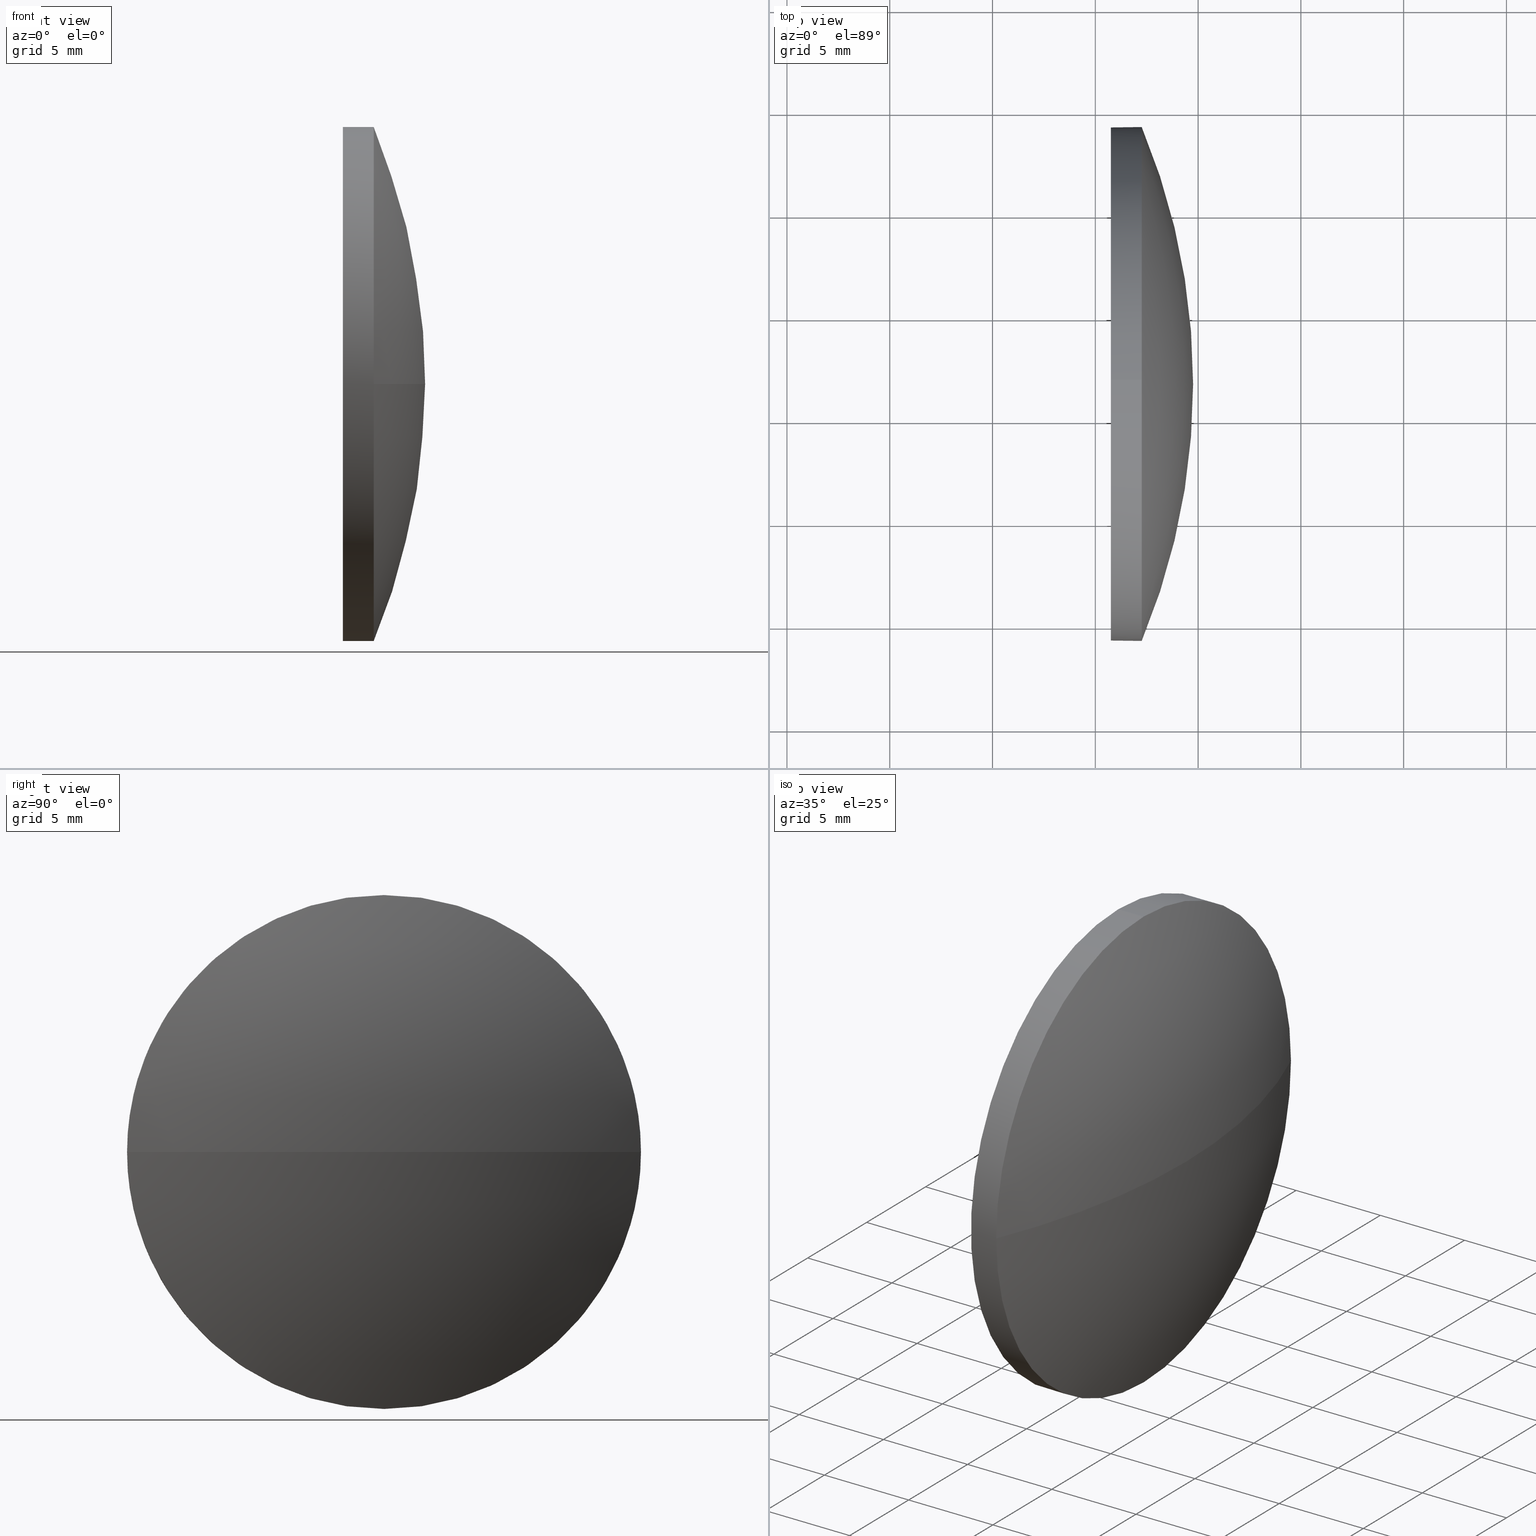
[diagram: canonical four-view strip — front | top / right | iso, engineering-drawing reading convention]
A machine part, canonical four-view strip (front | top / right | iso — engineering-drawing reading convention). The complete STEP part file that produces these views, byte-faithful:
ISO-10303-21;
HEADER;
FILE_DESCRIPTION (( 'STEP AP214' ),
    '1' );
FILE_NAME ('100127.STEP',
    '2019-05-14T09:08:15',
    ( '' ),
    ( '' ),
    'SwSTEP 2.0',
    'SolidWorks 2016',
    '' );
FILE_SCHEMA (( 'AUTOMOTIVE_DESIGN' ));
ENDSEC;

DATA;
#1 = EDGE_CURVE ( 'NONE', #178, #59, #99, .T. ) ;
#2 = CARTESIAN_POINT ( 'NONE',  ( 594.7578549459785800, 196.7022830089344200, 0.0000000000000000000 ) ) ;
#3 = FACE_OUTER_BOUND ( 'NONE', #107, .T. ) ;
#4 =( GEOMETRIC_REPRESENTATION_CONTEXT ( 3 ) GLOBAL_UNCERTAINTY_ASSIGNED_CONTEXT ( ( #170 ) ) GLOBAL_UNIT_ASSIGNED_CONTEXT ( ( #139, #51, #8 ) ) REPRESENTATION_CONTEXT ( 'NONE', 'WORKASPACE' ) );
#5 = LINE ( 'NONE', #156, #85 ) ;
#6 = AXIS2_PLACEMENT_3D ( 'NONE', #78, #10, #179 ) ;
#7 = CARTESIAN_POINT ( 'NONE',  ( 562.2578549459785800, 196.7022830089344200, 0.0000000000000000000 ) ) ;
#8 =( NAMED_UNIT ( * ) SI_UNIT ( $, .STERADIAN. ) SOLID_ANGLE_UNIT ( ) );
#9 = AXIS2_PLACEMENT_3D ( 'NONE', #64, #38, #117 ) ;
#10 = DIRECTION ( 'NONE',  ( -1.000000000000000000, -0.0000000000000000000, -0.0000000000000000000 ) ) ;
#11 = DIRECTION ( 'NONE',  ( 0.0000000000000000000, -1.000000000000000000, -1.224646799147353200E-016 ) ) ;
#12 = DIRECTION ( 'NONE',  ( 1.000000000000000000, 0.0000000000000000000, 0.0000000000000000000 ) ) ;
#13 = CARTESIAN_POINT ( 'NONE',  ( 592.2578549459785800, 196.7022830089343900, 0.0000000000000000000 ) ) ;
#14 = SURFACE_STYLE_FILL_AREA ( #34 ) ;
#15 =( NAMED_UNIT ( * ) PLANE_ANGLE_UNIT ( ) SI_UNIT ( $, .RADIAN. ) );
#16 = DIRECTION ( 'NONE',  ( 0.0000000000000000000, 0.0000000000000000000, 1.000000000000000000 ) ) ;
#17 = CIRCLE ( 'NONE', #49, 12.50000000000001100 ) ;
#18 = VERTEX_POINT ( 'NONE', #180 ) ;
#19 = AXIS2_PLACEMENT_3D ( 'NONE', #7, #93, #53 ) ;
#20 = CLOSED_SHELL ( 'NONE', ( #103, #88, #134, #172, #133 ) ) ;
#21 = CIRCLE ( 'NONE', #39, 12.50000000000001100 ) ;
#22 = VERTEX_POINT ( 'NONE', #105 ) ;
#23 = CARTESIAN_POINT ( 'NONE',  ( 590.7578549459785800, 196.7022830089343900, -12.50000000000001100 ) ) ;
#24 = DIRECTION ( 'NONE',  ( -1.000000000000000000, -0.0000000000000000000, -0.0000000000000000000 ) ) ;
#25 = PRODUCT ( '100127', '100127', '', ( #40 ) ) ;
#26 = DIRECTION ( 'NONE',  ( 0.0000000000000000000, 0.0000000000000000000, 1.000000000000000000 ) ) ;
#27 = STYLED_ITEM ( 'NONE', ( #46 ), #62 ) ;
#28 = CARTESIAN_POINT ( 'NONE',  ( 0.0000000000000000000, 0.0000000000000000000, 0.0000000000000000000 ) ) ;
#29 = ORIENTED_EDGE ( 'NONE', *, *, #124, .F. ) ;
#30 = ORIENTED_EDGE ( 'NONE', *, *, #161, .T. ) ;
#31 = EDGE_LOOP ( 'NONE', ( #114, #138, #160, #29 ) ) ;
#32 = SURFACE_STYLE_FILL_AREA ( #186 ) ;
#33 = EDGE_LOOP ( 'NONE', ( #140, #126 ) ) ;
#34 = FILL_AREA_STYLE ('',( #121 ) ) ;
#35 = CYLINDRICAL_SURFACE ( 'NONE', #174, 12.50000000000001100 ) ;
#36 = SURFACE_STYLE_USAGE ( .BOTH. , #137 ) ;
#37 = PRESENTATION_LAYER_ASSIGNMENT (  '', '', ( #27 ) ) ;
#38 = DIRECTION ( 'NONE',  ( -1.000000000000000000, -0.0000000000000000000, -0.0000000000000000000 ) ) ;
#39 = AXIS2_PLACEMENT_3D ( 'NONE', #177, #92, #120 ) ;
#40 = PRODUCT_CONTEXT ( 'NONE', #57, 'mechanical' ) ;
#41 = EDGE_CURVE ( 'NONE', #144, #59, #83, .T. ) ;
#42 = DIRECTION ( 'NONE',  ( 0.0000000000000000000, 0.0000000000000000000, 1.000000000000000000 ) ) ;
#43 = CARTESIAN_POINT ( 'NONE',  ( 590.7578549459785800, 196.7022830089343900, 0.0000000000000000000 ) ) ;
#44 =( NAMED_UNIT ( * ) SI_UNIT ( $, .STERADIAN. ) SOLID_ANGLE_UNIT ( ) );
#45 = AXIS2_PLACEMENT_3D ( 'NONE', #141, #12, #84 ) ;
#46 = PRESENTATION_STYLE_ASSIGNMENT (( #36 ) ) ;
#47 = PRODUCT_DEFINITION_CONTEXT ( 'detailed design', #112, 'design' ) ;
#48 = CIRCLE ( 'NONE', #108, 12.50000000000001100 ) ;
#49 = AXIS2_PLACEMENT_3D ( 'NONE', #13, #24, #154 ) ;
#50 = COLOUR_RGB ( '',1.000000000000000000, 1.000000000000000000, 1.000000000000000000 ) ;
#51 =( NAMED_UNIT ( * ) PLANE_ANGLE_UNIT ( ) SI_UNIT ( $, .RADIAN. ) );
#52 = SPHERICAL_SURFACE ( 'NONE', #89, 32.49999999999999300 ) ;
#53 = DIRECTION ( 'NONE',  ( -1.000000000000000000, 0.0000000000000000000, 0.0000000000000000000 ) ) ;
#54 = DIRECTION ( 'NONE',  ( -1.000000000000000000, -0.0000000000000000000, -0.0000000000000000000 ) ) ;
#55 = ORIENTED_EDGE ( 'NONE', *, *, #146, .F. ) ;
#56 = CARTESIAN_POINT ( 'NONE',  ( 592.2578549459785800, 196.7022830089343900, 0.0000000000000000000 ) ) ;
#57 = APPLICATION_CONTEXT ( 'automotive_design' ) ;
#58 = VECTOR ( 'NONE', #102, 1000.000000000000000 ) ;
#59 = VERTEX_POINT ( 'NONE', #77 ) ;
#60 = ORIENTED_EDGE ( 'NONE', *, *, #145, .T. ) ;
#61 = DIRECTION ( 'NONE',  ( 0.0000000000000000000, 0.0000000000000000000, 1.000000000000000000 ) ) ;
#62 = MANIFOLD_SOLID_BREP ( '��ת1', #20 ) ;
#63 = ORIENTED_EDGE ( 'NONE', *, *, #1, .T. ) ;
#64 = CARTESIAN_POINT ( 'NONE',  ( 592.2578549459785800, 196.7022830089343900, 0.0000000000000000000 ) ) ;
#65 = PRESENTATION_LAYER_ASSIGNMENT (  '', '', ( #119 ) ) ;
#66 = UNCERTAINTY_MEASURE_WITH_UNIT (LENGTH_MEASURE( 1.000000000000000100E-005 ), #100, 'distance_accuracy_value', 'NONE');
#67 = ORIENTED_EDGE ( 'NONE', *, *, #135, .T. ) ;
#68 =( NAMED_UNIT ( * ) PLANE_ANGLE_UNIT ( ) SI_UNIT ( $, .RADIAN. ) );
#69 = EDGE_LOOP ( 'NONE', ( #151, #30, #176, #150, #60 ) ) ;
#70 = DIRECTION ( 'NONE',  ( -1.000000000000000000, -0.0000000000000000000, -0.0000000000000000000 ) ) ;
#71 = MECHANICAL_DESIGN_GEOMETRIC_PRESENTATION_REPRESENTATION (  '', ( #27 ), #4 ) ;
#72 = AXIS2_PLACEMENT_3D ( 'NONE', #152, #26, #157 ) ;
#73 = FACE_OUTER_BOUND ( 'NONE', #173, .T. ) ;
#74 = AXIS2_PLACEMENT_3D ( 'NONE', #125, #185, #16 ) ;
#75 = COLOUR_RGB ( '',1.000000000000000000, 1.000000000000000000, 1.000000000000000000 ) ;
#76 = VERTEX_POINT ( 'NONE', #23 ) ;
#77 = CARTESIAN_POINT ( 'NONE',  ( 592.2578549459785800, 184.2022830089344400, 0.0000000000000000000 ) ) ;
#78 = CARTESIAN_POINT ( 'NONE',  ( 588.3922390432176100, 196.7022830089343900, 0.0000000000000000000 ) ) ;
#79 = DIRECTION ( 'NONE',  ( 0.0000000000000000000, -1.224646799147353200E-016, 1.000000000000000000 ) ) ;
#80 = DIRECTION ( 'NONE',  ( -1.000000000000000000, -0.0000000000000000000, -0.0000000000000000000 ) ) ;
#81 = PLANE ( 'NONE',  #45 ) ;
#82 = APPLICATION_PROTOCOL_DEFINITION ( 'draft international standard', 'automotive_design', 1998, #112 ) ;
#83 = CIRCLE ( 'NONE', #19, 32.49999999999997200 ) ;
#84 = DIRECTION ( 'NONE',  ( 0.0000000000000000000, 0.0000000000000000000, -1.000000000000000000 ) ) ;
#85 = VECTOR ( 'NONE', #80, 1000.000000000000000 ) ;
#86 = UNCERTAINTY_MEASURE_WITH_UNIT (LENGTH_MEASURE( 1.000000000000000100E-005 ), #101, 'distance_accuracy_value', 'NONE');
#87 = ORIENTED_EDGE ( 'NONE', *, *, #41, .F. ) ;
#88 = ADVANCED_FACE ( 'NONE', ( #3 ), #52, .T. ) ;
#89 = AXIS2_PLACEMENT_3D ( 'NONE', #136, #61, #109 ) ;
#90 = PRESENTATION_STYLE_ASSIGNMENT (( #153 ) ) ;
#91 = ORIENTED_EDGE ( 'NONE', *, *, #145, .F. ) ;
#92 = DIRECTION ( 'NONE',  ( -1.000000000000000000, -0.0000000000000000000, -0.0000000000000000000 ) ) ;
#93 = DIRECTION ( 'NONE',  ( 0.0000000000000000000, 0.0000000000000000000, -1.000000000000000000 ) ) ;
#94 = EDGE_CURVE ( 'NONE', #22, #76, #21, .T. ) ;
#95 = LINE ( 'NONE', #184, #58 ) ;
#96 = DIRECTION ( 'NONE',  ( -1.000000000000000000, -0.0000000000000000000, -0.0000000000000000000 ) ) ;
#97 = CARTESIAN_POINT ( 'NONE',  ( 592.2578549459785800, 196.7022830089343900, 12.50000000000001100 ) ) ;
#98 = EDGE_CURVE ( 'NONE', #144, #18, #164, .T. ) ;
#99 = CIRCLE ( 'NONE', #9, 12.50000000000001100 ) ;
#100 =( LENGTH_UNIT ( ) NAMED_UNIT ( * ) SI_UNIT ( .MILLI., .METRE. ) );
#101 =( LENGTH_UNIT ( ) NAMED_UNIT ( * ) SI_UNIT ( .MILLI., .METRE. ) );
#102 = DIRECTION ( 'NONE',  ( -1.000000000000000000, -0.0000000000000000000, -0.0000000000000000000 ) ) ;
#103 = ADVANCED_FACE ( 'NONE', ( #148 ), #106, .T. ) ;
#104 = ORIENTED_EDGE ( 'NONE', *, *, #115, .T. ) ;
#105 = CARTESIAN_POINT ( 'NONE',  ( 590.7578549459785800, 196.7022830089343900, 12.50000000000001100 ) ) ;
#106 = CYLINDRICAL_SURFACE ( 'NONE', #6, 12.50000000000001100 ) ;
#107 = EDGE_LOOP ( 'NONE', ( #87, #149, #91, #183 ) ) ;
#108 = AXIS2_PLACEMENT_3D ( 'NONE', #56, #70, #165 ) ;
#109 = DIRECTION ( 'NONE',  ( 0.0000000000000000000, -1.000000000000000000, 0.0000000000000000000 ) ) ;
#110 = CIRCLE ( 'NONE', #116, 12.50000000000001100 ) ;
#111 =( NAMED_UNIT ( * ) SI_UNIT ( $, .STERADIAN. ) SOLID_ANGLE_UNIT ( ) );
#112 = APPLICATION_CONTEXT ( 'automotive_design' ) ;
#113 = PRODUCT_RELATED_PRODUCT_CATEGORY ( 'part', '', ( #25 ) ) ;
#114 = ORIENTED_EDGE ( 'NONE', *, *, #98, .F. ) ;
#115 = EDGE_CURVE ( 'NONE', #59, #169, #48, .T. ) ;
#116 = AXIS2_PLACEMENT_3D ( 'NONE', #43, #54, #163 ) ;
#117 = DIRECTION ( 'NONE',  ( 0.0000000000000000000, 0.0000000000000000000, 1.000000000000000000 ) ) ;
#118 = ORIENTED_EDGE ( 'NONE', *, *, #161, .F. ) ;
#119 = STYLED_ITEM ( 'NONE', ( #90 ), #158 ) ;
#120 = DIRECTION ( 'NONE',  ( 0.0000000000000000000, 0.0000000000000000000, 1.000000000000000000 ) ) ;
#121 = FILL_AREA_STYLE_COLOUR ( '', #50 ) ;
#122 = SHAPE_DEFINITION_REPRESENTATION ( #175, #158 ) ;
#123 = DIRECTION ( 'NONE',  ( 0.0000000000000000000, 0.0000000000000000000, 1.000000000000000000 ) ) ;
#124 = EDGE_CURVE ( 'NONE', #18, #178, #17, .T. ) ;
#125 = CARTESIAN_POINT ( 'NONE',  ( 592.2578549459785800, 196.7022830089343900, 0.0000000000000000000 ) ) ;
#126 = ORIENTED_EDGE ( 'NONE', *, *, #146, .T. ) ;
#127 = CARTESIAN_POINT ( 'NONE',  ( 588.3922390432176100, 196.7022830089343900, 0.0000000000000000000 ) ) ;
#128 = DIRECTION ( 'NONE',  ( 1.000000000000000000, 0.0000000000000000000, 0.0000000000000000000 ) ) ;
#129 =( GEOMETRIC_REPRESENTATION_CONTEXT ( 3 ) GLOBAL_UNCERTAINTY_ASSIGNED_CONTEXT ( ( #66 ) ) GLOBAL_UNIT_ASSIGNED_CONTEXT ( ( #100, #68, #111 ) ) REPRESENTATION_CONTEXT ( 'NONE', 'WORKASPACE' ) );
#130 = CIRCLE ( 'NONE', #74, 12.50000000000001100 ) ;
#131 = MECHANICAL_DESIGN_GEOMETRIC_PRESENTATION_REPRESENTATION (  '', ( #119 ), #159 ) ;
#132 = SPHERICAL_SURFACE ( 'NONE', #72, 32.49999999999999300 ) ;
#133 = ADVANCED_FACE ( 'NONE', ( #168 ), #81, .F. ) ;
#134 = ADVANCED_FACE ( 'NONE', ( #181 ), #132, .T. ) ;
#135 = EDGE_CURVE ( 'NONE', #169, #22, #5, .T. ) ;
#136 = CARTESIAN_POINT ( 'NONE',  ( 562.2578549459785800, 196.7022830089344200, 0.0000000000000000000 ) ) ;
#137 = SURFACE_SIDE_STYLE ('',( #14 ) ) ;
#138 = ORIENTED_EDGE ( 'NONE', *, *, #41, .T. ) ;
#139 =( LENGTH_UNIT ( ) NAMED_UNIT ( * ) SI_UNIT ( .MILLI., .METRE. ) );
#140 = ORIENTED_EDGE ( 'NONE', *, *, #94, .T. ) ;
#141 = CARTESIAN_POINT ( 'NONE',  ( 590.7578549459785800, 196.7022830089343900, 0.0000000000000000000 ) ) ;
#142 = FILL_AREA_STYLE_COLOUR ( '', #75 ) ;
#143 = AXIS2_PLACEMENT_3D ( 'NONE', #162, #79, #11 ) ;
#144 = VERTEX_POINT ( 'NONE', #2 ) ;
#145 = EDGE_CURVE ( 'NONE', #169, #18, #130, .T. ) ;
#146 = EDGE_CURVE ( 'NONE', #76, #22, #110, .T. ) ;
#147 = PRODUCT_DEFINITION_FORMATION_WITH_SPECIFIED_SOURCE ( '�κ�', '', #25, .NOT_KNOWN. ) ;
#148 = FACE_OUTER_BOUND ( 'NONE', #69, .T. ) ;
#149 = ORIENTED_EDGE ( 'NONE', *, *, #98, .T. ) ;
#150 = ORIENTED_EDGE ( 'NONE', *, *, #135, .F. ) ;
#151 = ORIENTED_EDGE ( 'NONE', *, *, #124, .T. ) ;
#152 = CARTESIAN_POINT ( 'NONE',  ( 562.2578549459785800, 196.7022830089344200, 0.0000000000000000000 ) ) ;
#153 = SURFACE_STYLE_USAGE ( .BOTH. , #167 ) ;
#154 = DIRECTION ( 'NONE',  ( 0.0000000000000000000, 0.0000000000000000000, 1.000000000000000000 ) ) ;
#155 = CARTESIAN_POINT ( 'NONE',  ( 592.2578549459785800, 196.7022830089343900, -12.50000000000001100 ) ) ;
#156 = CARTESIAN_POINT ( 'NONE',  ( 588.3922390432176100, 196.7022830089343900, 12.50000000000001100 ) ) ;
#157 = DIRECTION ( 'NONE',  ( 0.0000000000000000000, -1.000000000000000000, 0.0000000000000000000 ) ) ;
#158 = ADVANCED_BREP_SHAPE_REPRESENTATION ( '100127', ( #62, #171 ), #129 ) ;
#159 =( GEOMETRIC_REPRESENTATION_CONTEXT ( 3 ) GLOBAL_UNCERTAINTY_ASSIGNED_CONTEXT ( ( #86 ) ) GLOBAL_UNIT_ASSIGNED_CONTEXT ( ( #101, #15, #44 ) ) REPRESENTATION_CONTEXT ( 'NONE', 'WORKASPACE' ) );
#160 = ORIENTED_EDGE ( 'NONE', *, *, #1, .F. ) ;
#161 = EDGE_CURVE ( 'NONE', #178, #76, #95, .T. ) ;
#162 = CARTESIAN_POINT ( 'NONE',  ( 562.2578549459785800, 196.7022830089344200, 0.0000000000000000000 ) ) ;
#163 = DIRECTION ( 'NONE',  ( 0.0000000000000000000, 0.0000000000000000000, 1.000000000000000000 ) ) ;
#164 = CIRCLE ( 'NONE', #143, 32.50000000000000000 ) ;
#165 = DIRECTION ( 'NONE',  ( 0.0000000000000000000, 0.0000000000000000000, 1.000000000000000000 ) ) ;
#166 = APPLICATION_PROTOCOL_DEFINITION ( 'draft international standard', 'automotive_design', 1998, #57 ) ;
#167 = SURFACE_SIDE_STYLE ('',( #32 ) ) ;
#168 = FACE_OUTER_BOUND ( 'NONE', #33, .T. ) ;
#169 = VERTEX_POINT ( 'NONE', #97 ) ;
#170 = UNCERTAINTY_MEASURE_WITH_UNIT (LENGTH_MEASURE( 1.000000000000000100E-005 ), #139, 'distance_accuracy_value', 'NONE');
#171 = AXIS2_PLACEMENT_3D ( 'NONE', #28, #123, #128 ) ;
#172 = ADVANCED_FACE ( 'NONE', ( #73 ), #35, .T. ) ;
#173 = EDGE_LOOP ( 'NONE', ( #118, #63, #104, #67, #55 ) ) ;
#174 = AXIS2_PLACEMENT_3D ( 'NONE', #127, #96, #42 ) ;
#175 = PRODUCT_DEFINITION_SHAPE ( 'NONE', 'NONE',  #182 ) ;
#176 = ORIENTED_EDGE ( 'NONE', *, *, #94, .F. ) ;
#177 = CARTESIAN_POINT ( 'NONE',  ( 590.7578549459785800, 196.7022830089343900, 0.0000000000000000000 ) ) ;
#178 = VERTEX_POINT ( 'NONE', #155 ) ;
#179 = DIRECTION ( 'NONE',  ( 0.0000000000000000000, 0.0000000000000000000, 1.000000000000000000 ) ) ;
#180 = CARTESIAN_POINT ( 'NONE',  ( 592.2578549459785800, 209.2022830089343600, 1.530808498934184400E-015 ) ) ;
#181 = FACE_OUTER_BOUND ( 'NONE', #31, .T. ) ;
#182 = PRODUCT_DEFINITION ( 'δ֪', '', #147, #47 ) ;
#183 = ORIENTED_EDGE ( 'NONE', *, *, #115, .F. ) ;
#184 = CARTESIAN_POINT ( 'NONE',  ( 588.3922390432176100, 196.7022830089343900, -12.50000000000001100 ) ) ;
#185 = DIRECTION ( 'NONE',  ( -1.000000000000000000, -0.0000000000000000000, -0.0000000000000000000 ) ) ;
#186 = FILL_AREA_STYLE ('',( #142 ) ) ;
ENDSEC;
END-ISO-10303-21;
